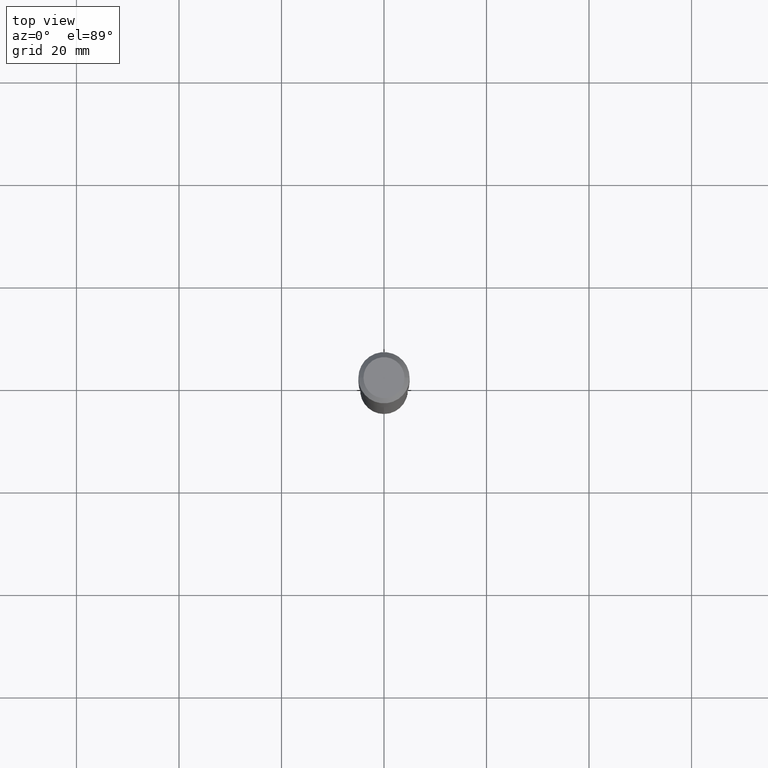
[diagram: clean part render]
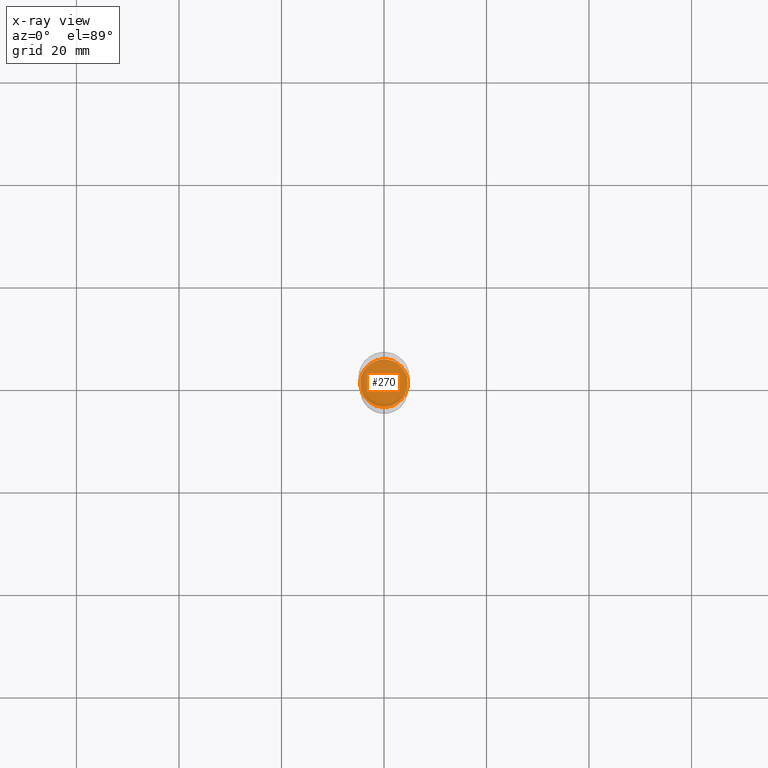
[diagram: x-ray — body ghosted, one internal face saturated and labeled with its STEP entity id]
A machine part, top view, then the same camera in x-ray: the body is ghosted and one INTERNAL B-rep face — a face not visible from any outside direction — is saturated and labeled: STEP entity #270.
In plain terms, the highlighted planar face has unit normal (-0, 0, 1).
Its self-contained STEP definition (entity closure, byte-faithful):
#17 = CARTESIAN_POINT ( 'NONE',  ( -0.1825499999999999623, -7.222611808678056579E-15, -2.440899999999999181 ) ) ;
#38 = CARTESIAN_POINT ( 'NONE',  ( 0.1825499999999999623, -9.797096636793858259E-15, -2.440899999999999181 ) ) ;
#57 = AXIS2_PLACEMENT_3D ( 'NONE', #319, #465, #83 ) ;
#59 = EDGE_CURVE ( 'NONE', #391, #120, #263, .T. ) ;
#76 = AXIS2_PLACEMENT_3D ( 'NONE', #290, #369, #409 ) ;
#77 = EDGE_CURVE ( 'NONE', #120, #391, #288, .T. ) ;
#79 = FACE_OUTER_BOUND ( 'NONE', #247, .T. ) ;
#83 = DIRECTION ( 'NONE',  ( 1.000000000000000000, -6.982962677686265922E-15, 4.876176775795935793E-29 ) ) ;
#90 = DIRECTION ( 'NONE',  ( -2.445468806185136597E-29, 3.491481338843145583E-15, 1.000000000000000000 ) ) ;
#120 = VERTEX_POINT ( 'NONE', #17 ) ;
#140 = CARTESIAN_POINT ( 'NONE',  ( 5.969144809017297917E-29, -8.522356799982231388E-15, -2.440899999999999181 ) ) ;
#236 = PLANE ( 'NONE',  #57 ) ;
#247 = EDGE_LOOP ( 'NONE', ( #298, #402 ) ) ;
#263 = CIRCLE ( 'NONE', #76, 0.1825499999999999623 ) ;
#270 = ADVANCED_FACE ( 'NONE', ( #79 ), #236, .F. ) ;
#288 = CIRCLE ( 'NONE', #317, 0.1825499999999999623 ) ;
#290 = CARTESIAN_POINT ( 'NONE',  ( 5.969144809017297917E-29, -8.522356799982231388E-15, -2.440899999999999181 ) ) ;
#298 = ORIENTED_EDGE ( 'NONE', *, *, #59, .F. ) ;
#317 = AXIS2_PLACEMENT_3D ( 'NONE', #140, #90, #443 ) ;
#319 = CARTESIAN_POINT ( 'NONE',  ( 5.969144809017297917E-29, -8.522356799982231388E-15, -2.440899999999999181 ) ) ;
#369 = DIRECTION ( 'NONE',  ( -2.445468806185136597E-29, 3.491481338843145583E-15, 1.000000000000000000 ) ) ;
#391 = VERTEX_POINT ( 'NONE', #38 ) ;
#402 = ORIENTED_EDGE ( 'NONE', *, *, #77, .F. ) ;
#409 = DIRECTION ( 'NONE',  ( 1.000000000000000000, -6.982962677686264344E-15, 0.000000000000000000 ) ) ;
#443 = DIRECTION ( 'NONE',  ( 1.000000000000000000, -6.982962677686264344E-15, 0.000000000000000000 ) ) ;
#465 = DIRECTION ( 'NONE',  ( -2.438088387897960049E-29, 3.491481338843145188E-15, 1.000000000000000000 ) ) ;